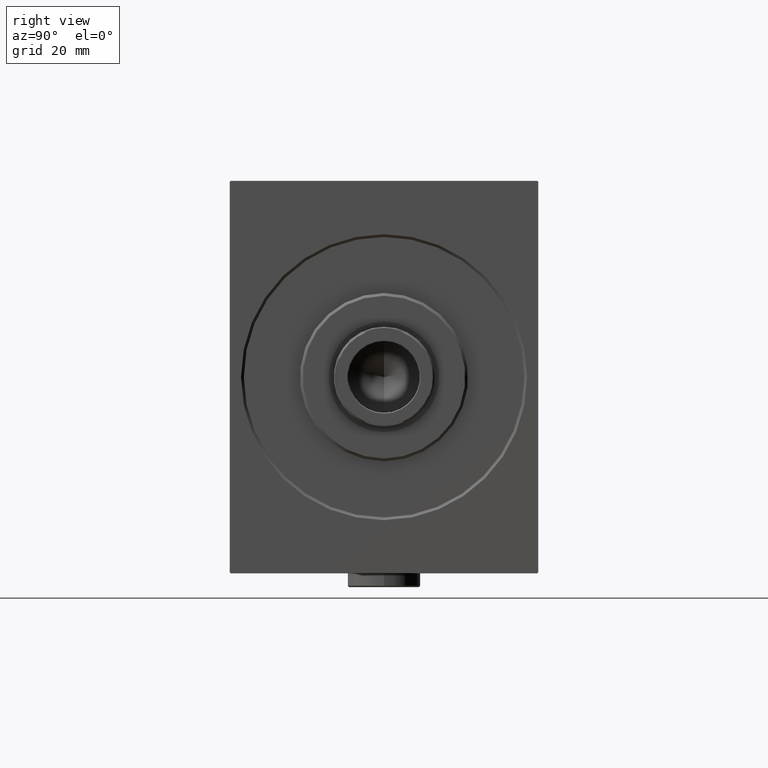
[diagram: clean part render]
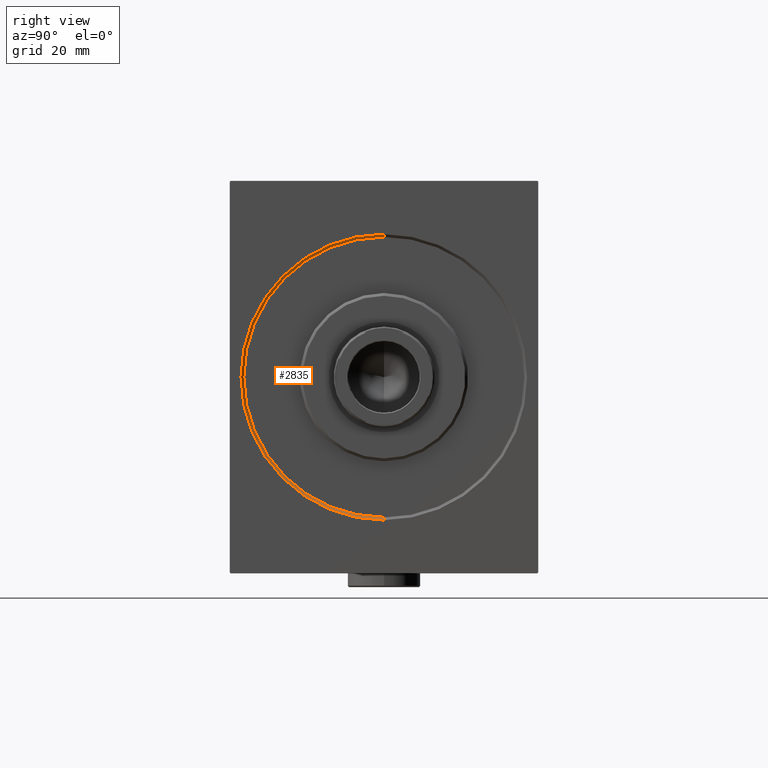
[diagram: same view with one face highlighted and labeled with its STEP entity id]
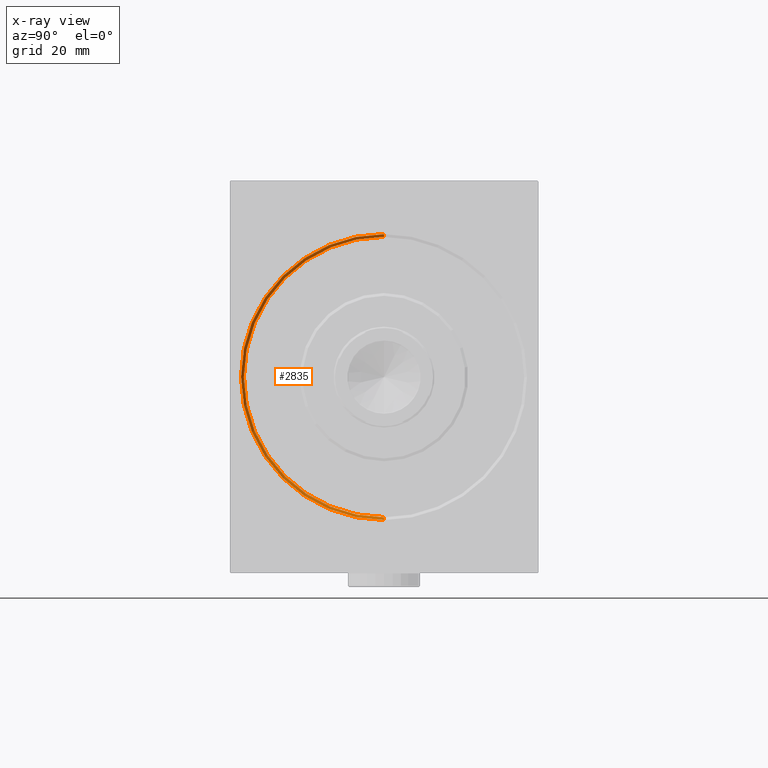
[diagram: x-ray of the same camera — body ghosted, the highlighted face saturated]
A machine part, right view. The second image highlights one B-rep face of the part: STEP entity #2835.
The next image is the same camera in x-ray: the body ghosted, the highlighted face saturated — about 0% of this face is hidden behind the body in this view.
In plain terms, the highlighted conical surface has half-angle 45 deg.
Its self-contained STEP definition (entity closure, byte-faithful):
#40 = CARTESIAN_POINT ( 'NONE',  ( 0.9999999999999384936, 0.000000000000000000, 50.00000000000000000 ) ) ;
#2096 = ORIENTED_EDGE ( 'NONE', *, *, #19736, .F. ) ;
#2835 = ADVANCED_FACE ( 'NONE', ( #29204 ), #44068, .F. ) ;
#2845 = DIRECTION ( 'NONE',  ( 0.000000000000000000, 0.000000000000000000, -1.000000000000000000 ) ) ;
#6929 = EDGE_CURVE ( 'NONE', #37319, #37205, #16252, .T. ) ;
#9592 = DIRECTION ( 'NONE',  ( 1.000000000000000000, 0.000000000000000000, 0.000000000000000000 ) ) ;
#10069 = EDGE_LOOP ( 'NONE', ( #42423, #41223, #11155, #2096 ) ) ;
#11133 = AXIS2_PLACEMENT_3D ( 'NONE', #42877, #12156, #32793 ) ;
#11155 = ORIENTED_EDGE ( 'NONE', *, *, #40154, .T. ) ;
#11399 = LINE ( 'NONE', #36660, #19128 ) ;
#12156 = DIRECTION ( 'NONE',  ( -1.000000000000000000, 0.000000000000000000, 0.000000000000000000 ) ) ;
#14213 = CARTESIAN_POINT ( 'NONE',  ( 0.9999999999999384936, 0.000000000000000000, 0.000000000000000000 ) ) ;
#16252 = CIRCLE ( 'NONE', #21992, 50.00000000000000000 ) ;
#19061 = VECTOR ( 'NONE', #33655, 1000.000000000000000 ) ;
#19128 = VECTOR ( 'NONE', #19613, 1000.000000000000000 ) ;
#19613 = DIRECTION ( 'NONE',  ( -0.7071067811865500152, 8.659560562354902043E-17, -0.7071067811865450192 ) ) ;
#19736 = EDGE_CURVE ( 'NONE', #30863, #24543, #23152, .T. ) ;
#21240 = LINE ( 'NONE', #42081, #19061 ) ;
#21992 = AXIS2_PLACEMENT_3D ( 'NONE', #14213, #34841, #38210 ) ;
#23152 = CIRCLE ( 'NONE', #31010, 50.99999999999993605 ) ;
#24543 = VERTEX_POINT ( 'NONE', #39915 ) ;
#25433 = CARTESIAN_POINT ( 'NONE',  ( 0.9999999999999384936, 6.123233995736766085E-15, -50.00000000000000000 ) ) ;
#29204 = FACE_OUTER_BOUND ( 'NONE', #10069, .T. ) ;
#30662 = CARTESIAN_POINT ( 'NONE',  ( 0.000000000000000000, 0.000000000000000000, 0.000000000000000000 ) ) ;
#30863 = VERTEX_POINT ( 'NONE', #36670 ) ;
#31010 = AXIS2_PLACEMENT_3D ( 'NONE', #30662, #9592, #2845 ) ;
#32793 = DIRECTION ( 'NONE',  ( 0.000000000000000000, 0.000000000000000000, 1.000000000000000000 ) ) ;
#33655 = DIRECTION ( 'NONE',  ( -0.7071067811865500152, 0.000000000000000000, 0.7071067811865450192 ) ) ;
#34841 = DIRECTION ( 'NONE',  ( -1.000000000000000000, 0.000000000000000000, 0.000000000000000000 ) ) ;
#36660 = CARTESIAN_POINT ( 'NONE',  ( 0.9999999999999384936, 6.123233995736766085E-15, -50.00000000000000000 ) ) ;
#36670 = CARTESIAN_POINT ( 'NONE',  ( 0.000000000000000000, 6.245698675651492556E-15, -50.99999999999993605 ) ) ;
#37205 = VERTEX_POINT ( 'NONE', #25433 ) ;
#37319 = VERTEX_POINT ( 'NONE', #40 ) ;
#38210 = DIRECTION ( 'NONE',  ( 0.000000000000000000, 0.000000000000000000, -1.000000000000000000 ) ) ;
#38890 = EDGE_CURVE ( 'NONE', #37205, #30863, #11399, .T. ) ;
#39915 = CARTESIAN_POINT ( 'NONE',  ( 0.000000000000000000, 0.000000000000000000, 50.99999999999993605 ) ) ;
#40154 = EDGE_CURVE ( 'NONE', #37319, #24543, #21240, .T. ) ;
#41223 = ORIENTED_EDGE ( 'NONE', *, *, #6929, .F. ) ;
#42081 = CARTESIAN_POINT ( 'NONE',  ( 0.9999999999999384936, 0.000000000000000000, 50.00000000000000000 ) ) ;
#42423 = ORIENTED_EDGE ( 'NONE', *, *, #38890, .F. ) ;
#42877 = CARTESIAN_POINT ( 'NONE',  ( 0.9999999999999384936, 0.000000000000000000, 0.000000000000000000 ) ) ;
#44068 = CONICAL_SURFACE ( 'NONE', #11133, 50.00000000000000000, 0.7853981633974447263 ) ;